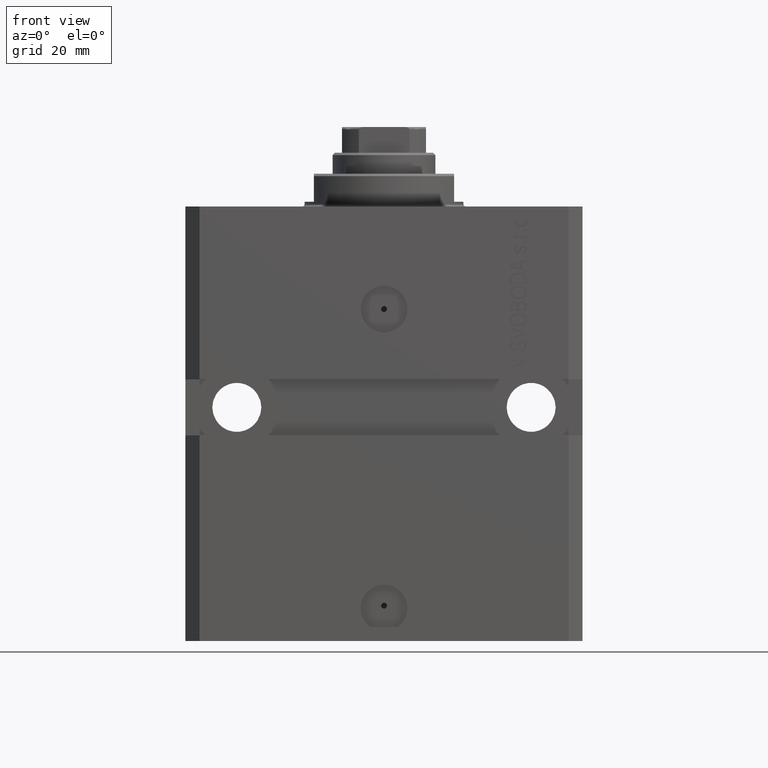
[diagram: clean part render]
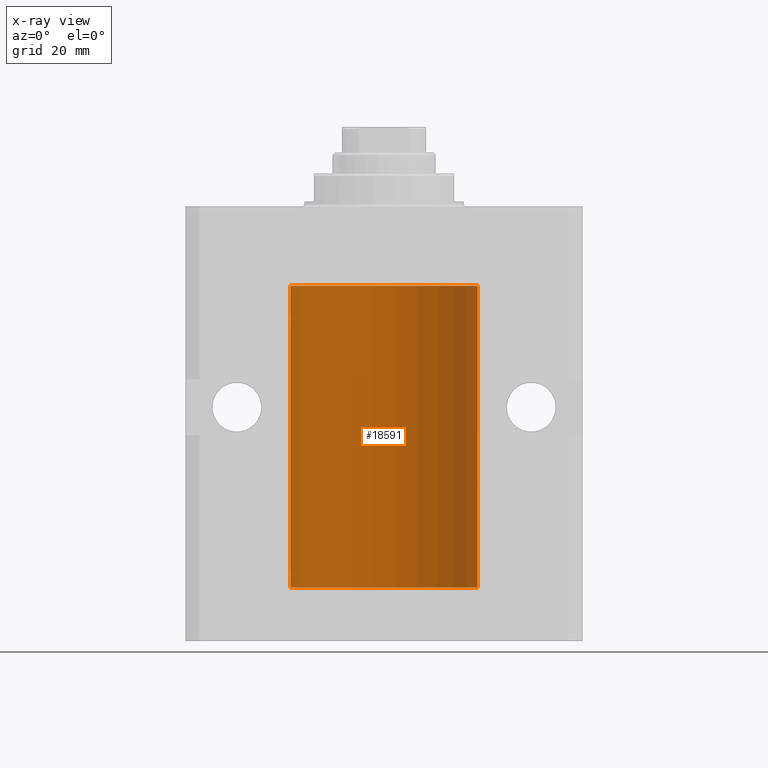
[diagram: x-ray — body ghosted, one internal face saturated and labeled with its STEP entity id]
A machine part, front view, then the same camera in x-ray: the body is ghosted and one INTERNAL B-rep face — a face not visible from any outside direction — is saturated and labeled: STEP entity #18591.
In plain terms, the highlighted cylindrical surface (partial cylindrical patch) has radius 20 mm, axis along (0, 0, 1).
Its self-contained STEP definition (entity closure, byte-faithful):
#253 = AXIS2_PLACEMENT_3D ( 'NONE', #28801, #39864, #47560 ) ;
#390 = VECTOR ( 'NONE', #37049, 1000.000000000000000 ) ;
#487 = ORIENTED_EDGE ( 'NONE', *, *, #44016, .T. ) ;
#748 = DIRECTION ( 'NONE',  ( 0.000000000000000000, 0.000000000000000000, 1.000000000000000000 ) ) ;
#1208 = CIRCLE ( 'NONE', #10428, 20.00000000000000000 ) ;
#1658 = ORIENTED_EDGE ( 'NONE', *, *, #36335, .F. ) ;
#2096 = VERTEX_POINT ( 'NONE', #43562 ) ;
#2223 = DIRECTION ( 'NONE',  ( -0.000000000000000000, -0.000000000000000000, 1.000000000000000000 ) ) ;
#4122 = CARTESIAN_POINT ( 'NONE',  ( 0.000000000000000000, 0.000000000000000000, -81.59999999999999432 ) ) ;
#5392 = CARTESIAN_POINT ( 'NONE',  ( -19.99947377218718003, 0.1636439183262797525, -78.39126364004653169 ) ) ;
#5742 = ORIENTED_EDGE ( 'NONE', *, *, #43397, .F. ) ;
#5806 = CARTESIAN_POINT ( 'NONE',  ( -20.00000000000010303, 3.580159286679549072E-13, -79.62500000000332534 ) ) ;
#5984 = VERTEX_POINT ( 'NONE', #5806 ) ;
#7280 = B_SPLINE_CURVE_WITH_KNOTS ( 'NONE', 3,
 ( #30910, #30189, #5392, #15518, #8286, #45113, #34037, #12135, #8776, #19368, #23223, #22982 ),
 .UNSPECIFIED., .F., .F.,
 ( 4, 2, 2, 2, 2, 4 ),
 ( 1.522880481566060999E-18, 0.0002442693137305179392, 0.0004885386274610343605, 0.0009770772549220966934, 0.001465615882383158918, 0.001954154509844221576 ),
 .UNSPECIFIED. ) ;
#8286 = CARTESIAN_POINT ( 'NONE',  ( -19.99638934703457238, 0.3843678041337651452, -78.50046362978099523 ) ) ;
#8776 = CARTESIAN_POINT ( 'NONE',  ( -19.99253506710754991, 0.5587120480776742726, -79.32511620830248944 ) ) ;
#9559 = VERTEX_POINT ( 'NONE', #45566 ) ;
#10046 = CARTESIAN_POINT ( 'NONE',  ( -19.99256581701871482, 0.5573276956902001311, -23.67348565770948809 ) ) ;
#10426 = EDGE_CURVE ( 'NONE', #26711, #41397, #28168, .T. ) ;
#10428 = AXIS2_PLACEMENT_3D ( 'NONE', #4122, #748, #15425 ) ;
#10834 = ORIENTED_EDGE ( 'NONE', *, *, #11239, .T. ) ;
#11058 = CARTESIAN_POINT ( 'NONE',  ( -20.00000000000000000, 2.449293598294706513E-15, -81.59999999999999432 ) ) ;
#11239 = EDGE_CURVE ( 'NONE', #2096, #42565, #38820, .T. ) ;
#12135 = CARTESIAN_POINT ( 'NONE',  ( -19.99023018003212471, 0.6250578794725522025, -79.16284809704971792 ) ) ;
#12676 = EDGE_LOOP ( 'NONE', ( #5742, #1658, #10834, #43766, #24051, #44814, #13080, #487 ) ) ;
#13046 = CYLINDRICAL_SURFACE ( 'NONE', #33773, 20.00000000000000000 ) ;
#13072 = CARTESIAN_POINT ( 'NONE',  ( 20.00000000000000000, 0.000000000000000000, -81.59999999999999432 ) ) ;
#13080 = ORIENTED_EDGE ( 'NONE', *, *, #10426, .F. ) ;
#13554 = DIRECTION ( 'NONE',  ( -0.000000000000000000, -0.000000000000000000, 1.000000000000000000 ) ) ;
#13886 = CARTESIAN_POINT ( 'NONE',  ( -19.99253506710754991, 0.5587120480776751608, -24.32511620830248589 ) ) ;
#14114 = CARTESIAN_POINT ( 'NONE',  ( -19.99023018003212471, 0.6250578794725500931, -24.16284809704970371 ) ) ;
#15425 = DIRECTION ( 'NONE',  ( 1.000000000000000000, 0.000000000000000000, 0.000000000000000000 ) ) ;
#15518 = CARTESIAN_POINT ( 'NONE',  ( -19.99766197842594551, 0.3150331617867603295, -78.45402070102504410 ) ) ;
#16907 = EDGE_CURVE ( 'NONE', #43114, #9559, #44494, .T. ) ;
#17281 = CARTESIAN_POINT ( 'NONE',  ( -19.99947377218718714, 0.1636439183262877461, -23.39126364004656011 ) ) ;
#18542 = LINE ( 'NONE', #11058, #390 ) ;
#18591 = ADVANCED_FACE ( 'NONE', ( #28447 ), #13046, .F. ) ;
#19368 = CARTESIAN_POINT ( 'NONE',  ( -19.99769349528941831, 0.3253804398728615266, -79.55855820727680339 ) ) ;
#20231 = CARTESIAN_POINT ( 'NONE',  ( -20.00000000000000000, 2.449293598294706513E-15, -81.59999999999999432 ) ) ;
#20354 = CARTESIAN_POINT ( 'NONE',  ( -20.00000000000010303, 3.580159278407742946E-13, -24.62500000000332889 ) ) ;
#22912 = CARTESIAN_POINT ( 'NONE',  ( 20.00000000000000000, 0.000000000000000000, -17.00000000000000000 ) ) ;
#22982 = CARTESIAN_POINT ( 'NONE',  ( -20.00000000000010303, 3.580159286679549072E-13, -79.62500000000332534 ) ) ;
#23223 = CARTESIAN_POINT ( 'NONE',  ( -20.00000000000000355, 0.1631688615953343080, -79.62499999999984368 ) ) ;
#23700 = VECTOR ( 'NONE', #42838, 1000.000000000000000 ) ;
#24051 = ORIENTED_EDGE ( 'NONE', *, *, #16907, .F. ) ;
#24605 = DIRECTION ( 'NONE',  ( 1.000000000000000000, 0.000000000000000000, 0.000000000000000000 ) ) ;
#25592 = CIRCLE ( 'NONE', #253, 20.00000000000000000 ) ;
#25699 = CARTESIAN_POINT ( 'NONE',  ( -20.00000000000000000, -2.867584836844214272E-15, -23.37500000000000000 ) ) ;
#26227 = CARTESIAN_POINT ( 'NONE',  ( -20.00000000000000000, 2.449293598294706513E-15, -81.59999999999999432 ) ) ;
#26711 = VERTEX_POINT ( 'NONE', #37216 ) ;
#27737 = CARTESIAN_POINT ( 'NONE',  ( 0.000000000000000000, 0.000000000000000000, -81.59999999999999432 ) ) ;
#28168 = LINE ( 'NONE', #20231, #23700 ) ;
#28447 = FACE_OUTER_BOUND ( 'NONE', #12676, .T. ) ;
#28569 = CARTESIAN_POINT ( 'NONE',  ( -19.99769349528941120, 0.3253804398728645242, -24.55855820727680339 ) ) ;
#28801 = CARTESIAN_POINT ( 'NONE',  ( 0.000000000000000000, 0.000000000000000000, -17.00000000000000000 ) ) ;
#30189 = CARTESIAN_POINT ( 'NONE',  ( -19.99999999999999289, 0.08259581631026131909, -78.37499999999998579 ) ) ;
#30211 = EDGE_CURVE ( 'NONE', #43114, #41397, #45707, .T. ) ;
#30212 = EDGE_CURVE ( 'NONE', #42565, #9559, #25592, .T. ) ;
#30523 = DIRECTION ( 'NONE',  ( -0.000000000000000000, -0.000000000000000000, 1.000000000000000000 ) ) ;
#30910 = CARTESIAN_POINT ( 'NONE',  ( -20.00000000000000000, -1.124177324826063808E-14, -78.37500000000000000 ) ) ;
#31848 = VERTEX_POINT ( 'NONE', #26227 ) ;
#32648 = CARTESIAN_POINT ( 'NONE',  ( -20.00000000000000000, -2.867584836844214272E-15, -23.37500000000000000 ) ) ;
#32919 = VECTOR ( 'NONE', #13554, 1000.000000000000000 ) ;
#33773 = AXIS2_PLACEMENT_3D ( 'NONE', #27737, #2223, #24605 ) ;
#34037 = CARTESIAN_POINT ( 'NONE',  ( -19.99023380173166231, 0.6249420416828449509, -78.83670793056396064 ) ) ;
#34128 = CARTESIAN_POINT ( 'NONE',  ( -20.00000000000000000, 2.449293598294706513E-15, -81.59999999999999432 ) ) ;
#35548 = CARTESIAN_POINT ( 'NONE',  ( -19.99999999999999645, 0.08259581631026780002, -23.37500000000000000 ) ) ;
#36246 = CARTESIAN_POINT ( 'NONE',  ( -20.00000000000010303, 3.580159278407742946E-13, -24.62500000000332889 ) ) ;
#36335 = EDGE_CURVE ( 'NONE', #2096, #31848, #1208, .T. ) ;
#36828 = VECTOR ( 'NONE', #30523, 1000.000000000000000 ) ;
#37049 = DIRECTION ( 'NONE',  ( -0.000000000000000000, -0.000000000000000000, 1.000000000000000000 ) ) ;
#37216 = CARTESIAN_POINT ( 'NONE',  ( -20.00000000000000000, -1.124177324826063808E-14, -78.37500000000000000 ) ) ;
#38820 = LINE ( 'NONE', #13072, #32919 ) ;
#39864 = DIRECTION ( 'NONE',  ( 0.000000000000000000, 0.000000000000000000, 1.000000000000000000 ) ) ;
#41397 = VERTEX_POINT ( 'NONE', #20354 ) ;
#42565 = VERTEX_POINT ( 'NONE', #22912 ) ;
#42838 = DIRECTION ( 'NONE',  ( -0.000000000000000000, -0.000000000000000000, 1.000000000000000000 ) ) ;
#43014 = CARTESIAN_POINT ( 'NONE',  ( -19.99638934703457593, 0.3843678041337688644, -23.50046362978100944 ) ) ;
#43114 = VERTEX_POINT ( 'NONE', #25699 ) ;
#43239 = CARTESIAN_POINT ( 'NONE',  ( -20.00000000000000000, 0.1631688615953320320, -24.62499999999985434 ) ) ;
#43397 = EDGE_CURVE ( 'NONE', #31848, #5984, #18542, .T. ) ;
#43562 = CARTESIAN_POINT ( 'NONE',  ( 20.00000000000000000, 0.000000000000000000, -81.59999999999999432 ) ) ;
#43766 = ORIENTED_EDGE ( 'NONE', *, *, #30212, .T. ) ;
#44016 = EDGE_CURVE ( 'NONE', #26711, #5984, #7280, .T. ) ;
#44494 = LINE ( 'NONE', #34128, #36828 ) ;
#44814 = ORIENTED_EDGE ( 'NONE', *, *, #30211, .T. ) ;
#45113 = CARTESIAN_POINT ( 'NONE',  ( -19.99256581701871838, 0.5573276956901996870, -78.67348565770949165 ) ) ;
#45566 = CARTESIAN_POINT ( 'NONE',  ( -20.00000000000000000, 2.449293598294706513E-15, -17.00000000000000000 ) ) ;
#45707 = B_SPLINE_CURVE_WITH_KNOTS ( 'NONE', 3,
 ( #32648, #35548, #17281, #47081, #43014, #10046, #46855, #14114, #13886, #28569, #43239, #36246 ),
 .UNSPECIFIED., .F., .F.,
 ( 4, 2, 2, 2, 2, 4 ),
 ( 5.848927291235706941E-19, 0.0002442693137305304075, 0.0004885386274610601645, 0.0009770772549221123059, 0.001465615882383164339, 0.001954154509844215938 ),
 .UNSPECIFIED. ) ;
#46855 = CARTESIAN_POINT ( 'NONE',  ( -19.99023380173166231, 0.6249420416828462832, -23.83670793056396064 ) ) ;
#47081 = CARTESIAN_POINT ( 'NONE',  ( -19.99766197842594906, 0.3150331617867667688, -23.45402070102505476 ) ) ;
#47560 = DIRECTION ( 'NONE',  ( 1.000000000000000000, 0.000000000000000000, 0.000000000000000000 ) ) ;